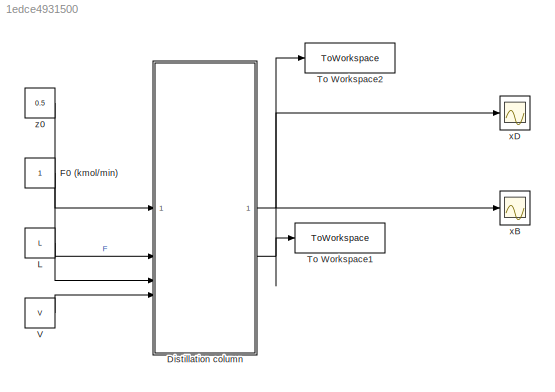
MODEL slx_1edce4931500
KIND model
CONFIG AbsTol = auto
CONFIG EnableMultiTasking = off
CONFIG FixedStep = auto
CONFIG MaxStep = auto
CONFIG MinStep = auto
CONFIG RelTol = 1e-3
CONFIG SampleTimeConstraint = Unconstrained
CONFIG SolverName = ode23s
CONFIG StartTime = 0.0
CONFIG StopTime = tfinal
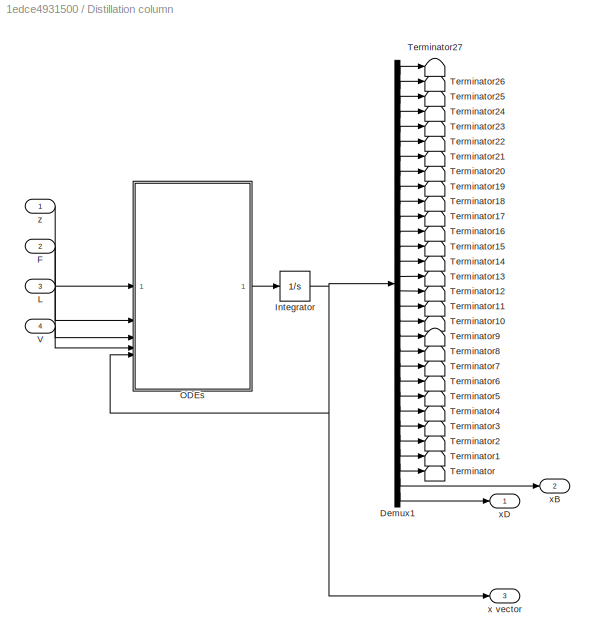
BLOCK [SubSystem] Distillation column
BLOCK [Demux] Distillation column/Demux1
  Outputs = 30
BLOCK [Inport] Distillation column/F
  Port = 2
BLOCK [Integrator] Distillation column/Integrator
  InitialCondition = [linspace(0,0.99,28)'; 0.036; 0.96]
  LowerSaturationLimit = 0
  UpperSaturationLimit = 1
BLOCK [Inport] Distillation column/L
  Port = 3
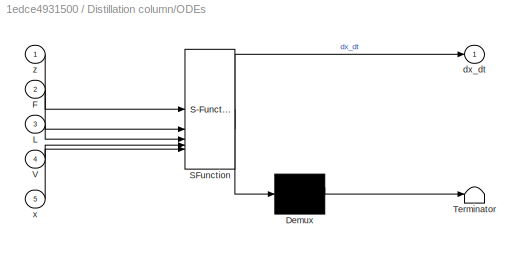
BLOCK [SubSystem] Distillation column/ODEs
  ErrorFcn = Stateflow.Translate.translate
  PermitHierarchicalResolution = ExplicitOnly
  SFBlockType = MATLAB Function
  TreatAsAtomicUnit = on
BLOCK [Demux] Distillation column/ODEs/ Demux 
  Outputs = 1
BLOCK [S-Function] Distillation column/ODEs/ SFunction 
  EnableBusSupport = on
  FunctionName = sf_sfun
  PortCounts = [5 2]
  SFcnIsStateOwnerBlock = off
  SFunctionDeploymentMode = off
  Tag = Stateflow S-Function 2
BLOCK [Terminator] Distillation column/ODEs/ Terminator 
BLOCK [Inport] Distillation column/ODEs/F
  Port = 2
BLOCK [Inport] Distillation column/ODEs/L
  Port = 3
BLOCK [Inport] Distillation column/ODEs/V
  Port = 4
BLOCK [Outport] Distillation column/ODEs/dx_dt
BLOCK [Inport] Distillation column/ODEs/x
  Port = 5
BLOCK [Inport] Distillation column/ODEs/z
BLOCK [Terminator] Distillation column/Terminator
BLOCK [Terminator] Distillation column/Terminator1
BLOCK [Terminator] Distillation column/Terminator10
BLOCK [Terminator] Distillation column/Terminator11
BLOCK [Terminator] Distillation column/Terminator12
BLOCK [Terminator] Distillation column/Terminator13
BLOCK [Terminator] Distillation column/Terminator14
BLOCK [Terminator] Distillation column/Terminator15
BLOCK [Terminator] Distillation column/Terminator16
BLOCK [Terminator] Distillation column/Terminator17
BLOCK [Terminator] Distillation column/Terminator18
BLOCK [Terminator] Distillation column/Terminator19
BLOCK [Terminator] Distillation column/Terminator2
BLOCK [Terminator] Distillation column/Terminator20
BLOCK [Terminator] Distillation column/Terminator21
BLOCK [Terminator] Distillation column/Terminator22
BLOCK [Terminator] Distillation column/Terminator23
BLOCK [Terminator] Distillation column/Terminator24
BLOCK [Terminator] Distillation column/Terminator25
BLOCK [Terminator] Distillation column/Terminator26
BLOCK [Terminator] Distillation column/Terminator27
BLOCK [Terminator] Distillation column/Terminator3
BLOCK [Terminator] Distillation column/Terminator4
BLOCK [Terminator] Distillation column/Terminator5
BLOCK [Terminator] Distillation column/Terminator6
BLOCK [Terminator] Distillation column/Terminator7
BLOCK [Terminator] Distillation column/Terminator8
BLOCK [Terminator] Distillation column/Terminator9
BLOCK [Inport] Distillation column/V
  Port = 4
BLOCK [Outport] Distillation column/x vector
  Port = 3
BLOCK [Outport] Distillation column/xB
  Port = 2
BLOCK [Outport] Distillation column/xD
BLOCK [Inport] Distillation column/z
BLOCK [Constant] F0 (kmol//min)
BLOCK [Constant] L
  Value = L
BLOCK [ToWorkspace] To Workspace1
  FixptAsFi = on
  MaxDataPoints = inf
  SampleTime = 10
  Save2DSignal = 2-D array (concatenate along first dimension)
  VariableName = xB
BLOCK [ToWorkspace] To Workspace2
  FixptAsFi = on
  MaxDataPoints = inf
  SampleTime = 10
  Save2DSignal = 2-D array (concatenate along first dimension)
  VariableName = xD
BLOCK [Constant] V
  Value = V
BLOCK [Scope] xB
  Floating = off
  NumInputPorts = 1
  ScopeSpecificationString = Simulink.scopes.TimeScopeBlockCfg('CurrentConfiguration', extmgr.ConfigurationSet(extmgr.Configuration('Core','General UI',true,'FigureColor',[1 1 1]),extmgr.Configuration('Core','Source UI',true),extmgr.Configuration('Sources','WiredSimulink',true,'DataLoggingVariableName','ScopeData1'),extmgr.Configuration('Visuals','Time Domain',true,'SerializedDisplays',{struct('MinYLimReal','-0.00376','MaxYLi...<+1451ch>
BLOCK [Scope] xD
  Floating = off
  NumInputPorts = 1
  ScopeSpecificationString = Simulink.scopes.TimeScopeBlockCfg('CurrentConfiguration', extmgr.ConfigurationSet(extmgr.Configuration('Core','General UI',true,'FigureColor',[1 1 1]),extmgr.Configuration('Core','Source UI',true),extmgr.Configuration('Sources','WiredSimulink',true),extmgr.Configuration('Visuals','Time Domain',true,'SerializedDisplays',{struct('MinYLimReal','0.77501','MaxYLimReal','1.02489','YLabelReal','','MinYLi...<+1427ch>
BLOCK [Constant] z0
  Value = 0.5
LINE Distillation column/Demux1:1 -> Distillation column/Terminator27:1
LINE Distillation column/Demux1:10 -> Distillation column/Terminator18:1
LINE Distillation column/Demux1:11 -> Distillation column/Terminator17:1
LINE Distillation column/Demux1:12 -> Distillation column/Terminator16:1
LINE Distillation column/Demux1:13 -> Distillation column/Terminator15:1
LINE Distillation column/Demux1:14 -> Distillation column/Terminator14:1
LINE Distillation column/Demux1:15 -> Distillation column/Terminator13:1
LINE Distillation column/Demux1:16 -> Distillation column/Terminator12:1
LINE Distillation column/Demux1:17 -> Distillation column/Terminator11:1
LINE Distillation column/Demux1:18 -> Distillation column/Terminator10:1
LINE Distillation column/Demux1:19 -> Distillation column/Terminator9:1
LINE Distillation column/Demux1:2 -> Distillation column/Terminator26:1
LINE Distillation column/Demux1:20 -> Distillation column/Terminator8:1
LINE Distillation column/Demux1:21 -> Distillation column/Terminator7:1
LINE Distillation column/Demux1:22 -> Distillation column/Terminator6:1
LINE Distillation column/Demux1:23 -> Distillation column/Terminator5:1
LINE Distillation column/Demux1:24 -> Distillation column/Terminator4:1
LINE Distillation column/Demux1:25 -> Distillation column/Terminator3:1
LINE Distillation column/Demux1:26 -> Distillation column/Terminator2:1
LINE Distillation column/Demux1:27 -> Distillation column/Terminator1:1
LINE Distillation column/Demux1:28 -> Distillation column/Terminator:1
LINE Distillation column/Demux1:29 -> Distillation column/xB:1
LINE Distillation column/Demux1:3 -> Distillation column/Terminator25:1
LINE Distillation column/Demux1:30 -> Distillation column/xD:1
LINE Distillation column/Demux1:4 -> Distillation column/Terminator24:1
LINE Distillation column/Demux1:5 -> Distillation column/Terminator23:1
LINE Distillation column/Demux1:6 -> Distillation column/Terminator22:1
LINE Distillation column/Demux1:7 -> Distillation column/Terminator21:1
LINE Distillation column/Demux1:8 -> Distillation column/Terminator20:1
LINE Distillation column/Demux1:9 -> Distillation column/Terminator19:1
LINE Distillation column/F:1 -> Distillation column/ODEs:2
NET Distillation column/Integrator:1 -> Distillation column/Demux1:1, Distillation column/ODEs:5, Distillation column/x vector:1
LINE Distillation column/L:1 -> Distillation column/ODEs:3
LINE Distillation column/ODEs:1 -> Distillation column/Integrator:1
LINE Distillation column/V:1 -> Distillation column/ODEs:4
LINE Distillation column/z:1 -> Distillation column/ODEs:1
NET Distillation column:1 -> To Workspace2:1, xD:1
NET Distillation column:2 -> To Workspace1:1, xB:1
LINE F0 (kmol//min):1 -> Distillation column:2
LINE L:1 -> Distillation column:3
LINE V:1 -> Distillation column:4
LINE z0:1 -> Distillation column:1
note: NET lines group one-source signal fan-out (src -> all destinations, sorted); 1:1 wires keep LINE
CHART Distillation column/ODEs states=1 transitions=1
  STATE_LABEL 'eML_blk_kernel()'
  STATE_LABEL 'SCRIPT:\nfunction dx_dt = distillationColumn(z, F, L, V, x)\n% ODEs representing a 30-tray distillation column for benzene/toluene\n% separation. All molar hold-ups are constant, only composition varies.\n% The feed is assumed to be a saturated liquid.\n%\n% Inputs are defined as follows:\n%   z: ~, feed composition\n%   F: kmol/min, feed flowrate\n%   L: kmol/min, reflux flowrate\n%   V: kmol/min, vapour f...<+1559ch>'
CHART  states=0 transitions=0
